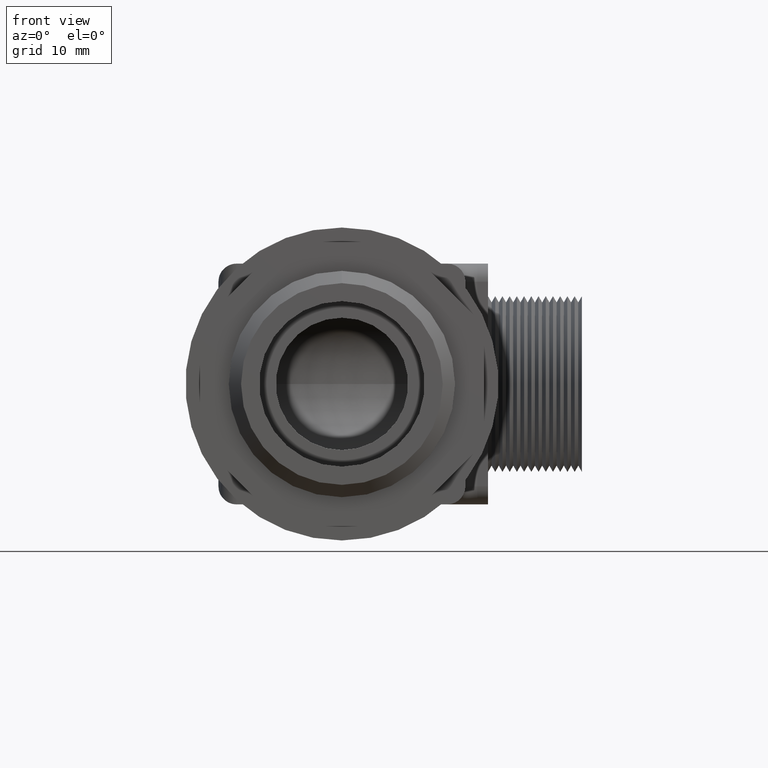
[diagram: clean part render]
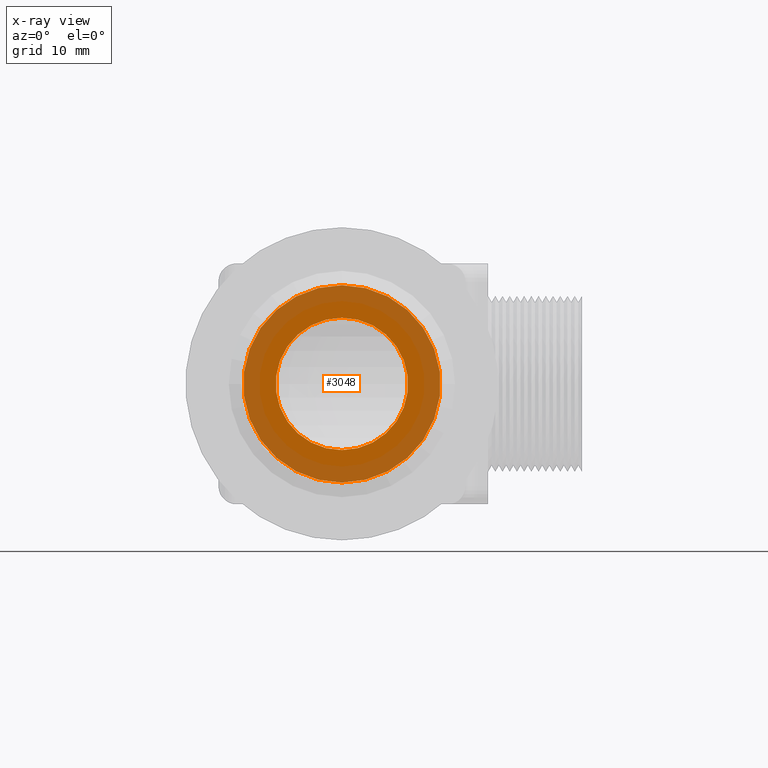
[diagram: x-ray — body ghosted, one internal face saturated and labeled with its STEP entity id]
A machine part, front view, then the same camera in x-ray: the body is ghosted and one INTERNAL B-rep face — a face not visible from any outside direction — is saturated and labeled: STEP entity #3048.
In plain terms, the highlighted planar face has unit normal (0, 1, 0).
Its self-contained STEP definition (entity closure, byte-faithful):
#2967 = EDGE_CURVE ( 'NONE', #3012, #3374, #5639, .T. ) ;
#2968 = ORIENTED_EDGE ( 'NONE', *, *, #3005, .F. ) ;
#2969 = EDGE_LOOP ( 'NONE', ( #2970, #2971 ) ) ;
#2970 = ORIENTED_EDGE ( 'NONE', *, *, #3367, .T. ) ;
#2971 = ORIENTED_EDGE ( 'NONE', *, *, #2974, .T. ) ;
#2974 = EDGE_CURVE ( 'NONE', #3001, #3376, #5686, .T. ) ;
#2981 = ORIENTED_EDGE ( 'NONE', *, *, #2967, .F. ) ;
#3001 = VERTEX_POINT ( 'NONE', #5654 ) ;
#3005 = EDGE_CURVE ( 'NONE', #3374, #3012, #5719, .T. ) ;
#3012 = VERTEX_POINT ( 'NONE', #5702 ) ;
#3028 = EDGE_LOOP ( 'NONE', ( #2981, #2968 ) ) ;
#3048 = ADVANCED_FACE ( 'NONE', ( #5810, #5804 ), #5803, .F. ) ;
#3367 = EDGE_CURVE ( 'NONE', #3376, #3001, #6349, .T. ) ;
#3374 = VERTEX_POINT ( 'NONE', #6342 ) ;
#3376 = VERTEX_POINT ( 'NONE', #6341 ) ;
#5635 = DIRECTION ( 'NONE',  ( 0.0000000000000000000, 0.0000000000000000000, 1.000000000000000000 ) ) ;
#5636 = DIRECTION ( 'NONE',  ( -0.0000000000000000000, 1.000000000000000000, -0.0000000000000000000 ) ) ;
#5637 = CARTESIAN_POINT ( 'NONE',  ( 0.0000000000000000000, 0.6119999999999998800, 0.0000000000000000000 ) ) ;
#5638 = AXIS2_PLACEMENT_3D ( 'NONE', #5637, #5636, #5635 ) ;
#5639 = CIRCLE ( 'NONE', #5638, 0.4099999999999999800 ) ;
#5654 = CARTESIAN_POINT ( 'NONE',  ( 3.367667473011534500E-017, 0.6119999999999998800, 0.2749999999999997400 ) ) ;
#5682 = DIRECTION ( 'NONE',  ( 0.0000000000000000000, 0.0000000000000000000, 1.000000000000000000 ) ) ;
#5683 = DIRECTION ( 'NONE',  ( 0.0000000000000000000, 1.000000000000000000, 0.0000000000000000000 ) ) ;
#5684 = CARTESIAN_POINT ( 'NONE',  ( 0.0000000000000000000, 0.6119999999999998800, 0.0000000000000000000 ) ) ;
#5685 = AXIS2_PLACEMENT_3D ( 'NONE', #5684, #5683, #5682 ) ;
#5686 = CIRCLE ( 'NONE', #5685, 0.2749999999999997400 ) ;
#5702 = CARTESIAN_POINT ( 'NONE',  ( 0.0000000000000000000, 0.6119999999999998800, -0.4099999999999999800 ) ) ;
#5715 = DIRECTION ( 'NONE',  ( 0.0000000000000000000, 0.0000000000000000000, 1.000000000000000000 ) ) ;
#5716 = DIRECTION ( 'NONE',  ( -0.0000000000000000000, 1.000000000000000000, -0.0000000000000000000 ) ) ;
#5717 = CARTESIAN_POINT ( 'NONE',  ( 0.0000000000000000000, 0.6119999999999998800, 0.0000000000000000000 ) ) ;
#5718 = AXIS2_PLACEMENT_3D ( 'NONE', #5717, #5716, #5715 ) ;
#5719 = CIRCLE ( 'NONE', #5718, 0.4099999999999999800 ) ;
#5798 = DIRECTION ( 'NONE',  ( 0.0000000000000000000, -0.0000000000000000000, 1.000000000000000000 ) ) ;
#5799 = DIRECTION ( 'NONE',  ( 0.0000000000000000000, 1.000000000000000000, 0.0000000000000000000 ) ) ;
#5800 = CARTESIAN_POINT ( 'NONE',  ( 0.0000000000000000000, 0.6119999999999998800, 0.0000000000000000000 ) ) ;
#5801 = AXIS2_PLACEMENT_3D ( 'NONE', #5800, #5799, #5798 ) ;
#5803 = PLANE ( 'NONE',  #5801 ) ;
#5804 = FACE_BOUND ( 'NONE', #2969, .T. ) ;
#5810 = FACE_OUTER_BOUND ( 'NONE', #3028, .T. ) ;
#6341 = CARTESIAN_POINT ( 'NONE',  ( 0.0000000000000000000, 0.6119999999999998800, -0.2749999999999997400 ) ) ;
#6342 = CARTESIAN_POINT ( 'NONE',  ( 5.020886050671747100E-017, 0.6119999999999998800, 0.4099999999999999800 ) ) ;
#6345 = DIRECTION ( 'NONE',  ( 0.0000000000000000000, 0.0000000000000000000, 1.000000000000000000 ) ) ;
#6346 = DIRECTION ( 'NONE',  ( 0.0000000000000000000, 1.000000000000000000, 0.0000000000000000000 ) ) ;
#6347 = CARTESIAN_POINT ( 'NONE',  ( 0.0000000000000000000, 0.6119999999999998800, 0.0000000000000000000 ) ) ;
#6348 = AXIS2_PLACEMENT_3D ( 'NONE', #6347, #6346, #6345 ) ;
#6349 = CIRCLE ( 'NONE', #6348, 0.2749999999999997400 ) ;